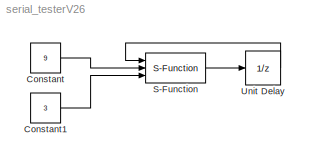
MODEL serial_testerV26
KIND model
BLOCK [Constant] Constant
  OutDataType = fixdt(1, 16)
  OutDataTypeMode = int32
  OutDataTypeStr = int32
  OutScaling = 2^0
  Value = 9
BLOCK [Constant] Constant1
  OutDataType = fixdt(1, 16)
  OutDataTypeMode = int32
  OutDataTypeStr = int32
  OutScaling = 2^0
  Value = 3
BLOCK [S-Function] S-Function
  EnableBusSupport = off
  FunctionName = serialMaster3
  Ports = [3, 1]
BLOCK [UnitDelay] Unit Delay
  SampleTime = -1
LINE Constant1:1 -> S-Function:3
LINE Constant:1 -> S-Function:2
LINE S-Function:1 -> Unit Delay:1
LINE Unit Delay:1 -> S-Function:1
